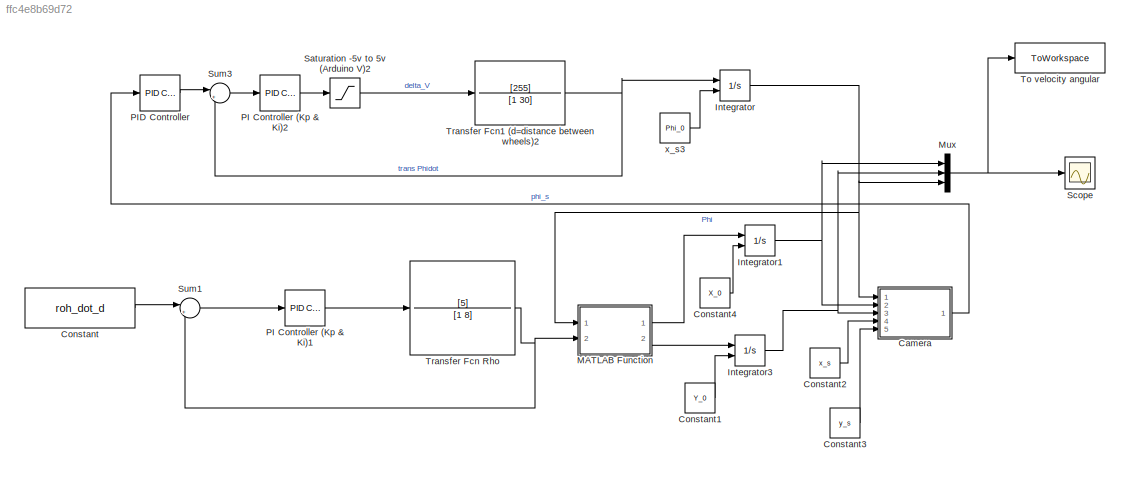
MODEL slx_ffc4e8b69d72
KIND model
CONFIG AbsTol = auto
CONFIG EnableMultiTasking = off
CONFIG FixedStep = auto
CONFIG MaxStep = auto
CONFIG MinStep = auto
CONFIG RelTol = 1e-3
CONFIG SampleTimeConstraint = Unconstrained
CONFIG SolverName = VariableStepAuto
CONFIG StartTime = 0.0
CONFIG StopTime = 10.0
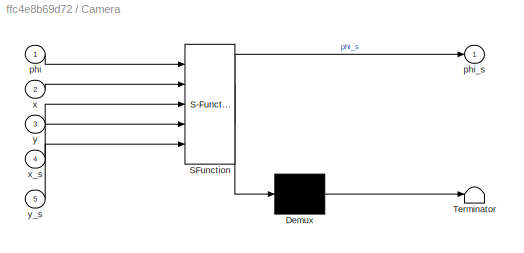
BLOCK [SubSystem] Camera
  ErrorFcn = Stateflow.Translate.translate
  PermitHierarchicalResolution = ExplicitOnly
  Ports = [5, 1]
  RequestExecContextInheritance = off
  SFBlockType = MATLAB Function
  SystemSampleTime = .2
  TreatAsAtomicUnit = on
BLOCK [Demux] Camera/ Demux 
  Outputs = 1
  Ports = [1, 1]
BLOCK [S-Function] Camera/ SFunction 
  EnableBusSupport = on
  FunctionName = sf_sfun
  PortCounts = [5 2]
  Ports = [5, 2]
  SFcnIsStateOwnerBlock = off
  SFunctionDeploymentMode = off
  Tag = Stateflow S-Function 2
BLOCK [Terminator] Camera/ Terminator 
BLOCK [Inport] Camera/phi
BLOCK [Outport] Camera/phi_s
BLOCK [Inport] Camera/x
  Port = 2
BLOCK [Inport] Camera/x_s
  Port = 4
BLOCK [Inport] Camera/y
  Port = 3
BLOCK [Inport] Camera/y_s
  Port = 5
BLOCK [Constant] Constant
  Value = roh_dot_d
BLOCK [Constant] Constant1
  Value = Y_0
BLOCK [Constant] Constant2
  Value = x_s
BLOCK [Constant] Constant3
  Value = y_s
BLOCK [Constant] Constant4
  Value = X_0
BLOCK [Integrator] Integrator
  InitialConditionSource = external
  Ports = [2, 1]
BLOCK [Integrator] Integrator1
  InitialConditionSource = external
  Ports = [2, 1]
BLOCK [Integrator] Integrator3
  InitialConditionSource = external
  Ports = [2, 1]
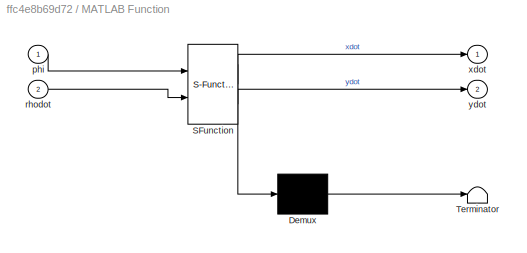
BLOCK [SubSystem] MATLAB Function
  ErrorFcn = Stateflow.Translate.translate
  PermitHierarchicalResolution = ExplicitOnly
  Ports = [2, 2]
  RequestExecContextInheritance = off
  SFBlockType = MATLAB Function
  TreatAsAtomicUnit = on
BLOCK [Demux] MATLAB Function/ Demux 
  Outputs = 1
  Ports = [1, 1]
BLOCK [S-Function] MATLAB Function/ SFunction 
  EnableBusSupport = on
  FunctionName = sf_sfun
  PortCounts = [2 3]
  Ports = [2, 3]
  SFcnIsStateOwnerBlock = off
  SFunctionDeploymentMode = off
  Tag = Stateflow S-Function 1
BLOCK [Terminator] MATLAB Function/ Terminator 
BLOCK [Inport] MATLAB Function/phi
BLOCK [Inport] MATLAB Function/rhodot
  Port = 2
BLOCK [Outport] MATLAB Function/xdot
BLOCK [Outport] MATLAB Function/ydot
  Port = 2
BLOCK [Mux] Mux
  DisplayOption = bar
  Inputs = 3
  Ports = [3, 1]
BLOCK [Reference] PI Controller (Kp & Ki)1  REF=slpidlib/PID Controller
  Ports = [1, 1]
  SourceBlock = slpidlib/PID Controller
  SourceProductBaseCode = SL
  SourceType = PID 1dof
BLOCK [Reference] PI Controller (Kp & Ki)2  REF=slpidlib/PID Controller
  Ports = [1, 1]
  SourceBlock = slpidlib/PID Controller
  SourceProductBaseCode = SL
  SourceType = PID 1dof
BLOCK [Reference] PID Controller  REF=slpidlib/PID Controller
  Ports = [1, 1]
  SourceBlock = slpidlib/PID Controller
  SourceProductBaseCode = SL
  SourceType = PID 1dof
BLOCK [Saturate] Saturation -5v to 5v (Arduino V)2
  LowerLimit = -5
  NameLocation = top
  UpperLimit = 5
BLOCK [Scope] Scope
  Floating = off
  NumInputPorts = 1
  Ports = [1]
  ScopeSpecificationString = Simulink.scopes.TimeScopeBlockCfg('CurrentConfiguration', extmgr.ConfigurationSet(extmgr.Configuration('Core','General UI',true),extmgr.Configuration('Core','Source UI',true),extmgr.Configuration('Sources','WiredSimulink',true),extmgr.Configuration('Visuals','Time Domain',true),extmgr.Configuration('Tools','Plot Navigation',true),extmgr.Configuration('Tools','Measurements',true)),'Version','2021b'...<+1ch>
BLOCK [Sum] Sum1
  Inputs = |+-
  Ports = [2, 1]
BLOCK [Sum] Sum3
  Inputs = |+-
  NameLocation = top
  Ports = [2, 1]
BLOCK [ToWorkspace] To velocity angular
  FixptAsFi = on
  MaxDataPoints = inf
  Ports = [1]
  SampleTime = -1
  SaveFormat = Timeseries
  VariableName = Pos
BLOCK [TransferFcn] Transfer Fcn Rho
  Denominator = [1 8]
  Numerator = [5]
BLOCK [TransferFcn] Transfer Fcn1 (d=distance between wheels)2
  Denominator = [1 30]
  Numerator = [255]
BLOCK [Constant] x_s3
  Value = Phi_0
LINE Camera:1 -> PID Controller:1
LINE Constant1:1 -> Integrator3:2
LINE Constant2:1 -> Camera:4
LINE Constant3:1 -> Camera:5
LINE Constant4:1 -> Integrator1:2
LINE Constant:1 -> Sum1:1
NET Integrator1:1 -> Camera:2, Mux:1
NET Integrator3:1 -> Camera:3, Mux:2
NET Integrator:1 -> Camera:1, MATLAB Function:1, Mux:3
LINE MATLAB Function:1 -> Integrator1:1
LINE MATLAB Function:2 -> Integrator3:1
NET Mux:1 -> Scope:1, To velocity angular:1
LINE PI Controller (Kp & Ki)1:1 -> Transfer Fcn Rho:1
LINE PI Controller (Kp & Ki)2:1 -> Saturation -5v to 5v (Arduino V)2:1
LINE PID Controller:1 -> Sum3:1
LINE Saturation -5v to 5v (Arduino V)2:1 -> Transfer Fcn1 (d=distance between wheels)2:1
LINE Sum1:1 -> PI Controller (Kp & Ki)1:1
LINE Sum3:1 -> PI Controller (Kp & Ki)2:1
NET Transfer Fcn Rho:1 -> MATLAB Function:2, Sum1:2
NET Transfer Fcn1 (d=distance between wheels)2:1 -> Integrator:1, Sum3:2
LINE x_s3:1 -> Integrator:2
note: NET lines group one-source signal fan-out (src -> all destinations, sorted); 1:1 wires keep LINE
CHART MATLAB Function states=1 transitions=1
  STATE_LABEL 'eML_blk_kernel()'
  STATE_LABEL 'SCRIPT:\nfunction [xdot,ydot] = fcn(phi,rhodot)\n\nxdot = rhodot*cos(phi*pi/180);\nydot = rhodot*sin(phi*pi/180);'
CHART Camera states=1 transitions=1
  STATE_LABEL 'eML_blk_kernel()'
  STATE_LABEL 'SCRIPT:\nfunction phi_s = fcn(phi,x,y,x_s,y_s)\n%#codegen\n%\n% Simulation of Camera with line detection\n% phi - angle of robot in degrees\n% x - x position of robot in feet\n% y - y position of robot in feet\n% x_s - vector of x coordinates for line to be detected (in feet)\n% y_s - vector of y coordinates for line to be detected (in feet)\n%\n%\n\n% change show_image to 1 to see camera image during simulati...<+2767ch>'
CHART  states=0 transitions=0
CHART  states=0 transitions=0
